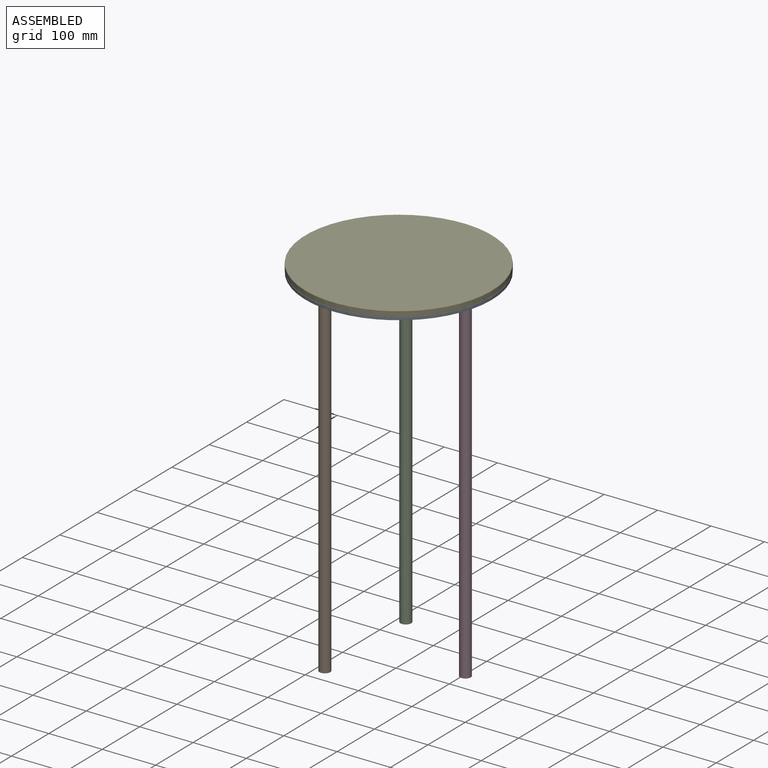
[diagram: assembled view]
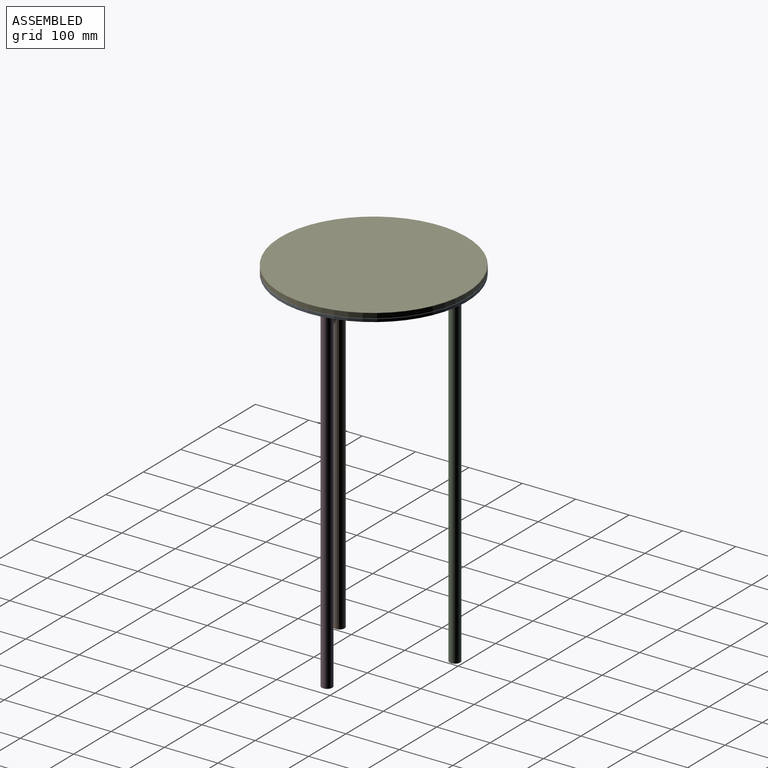
[diagram: assembled view, second angle]
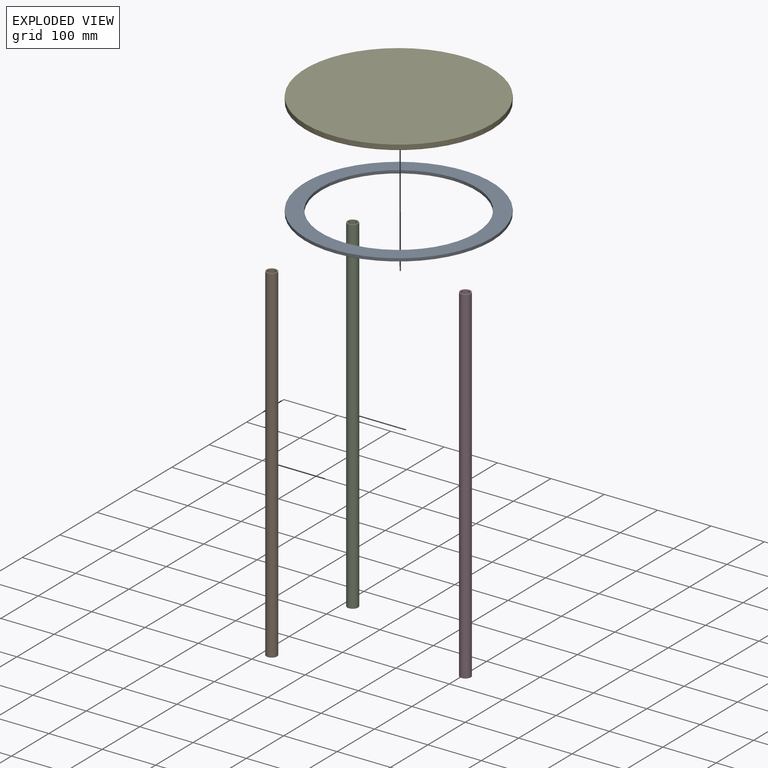
[diagram: exploded view]
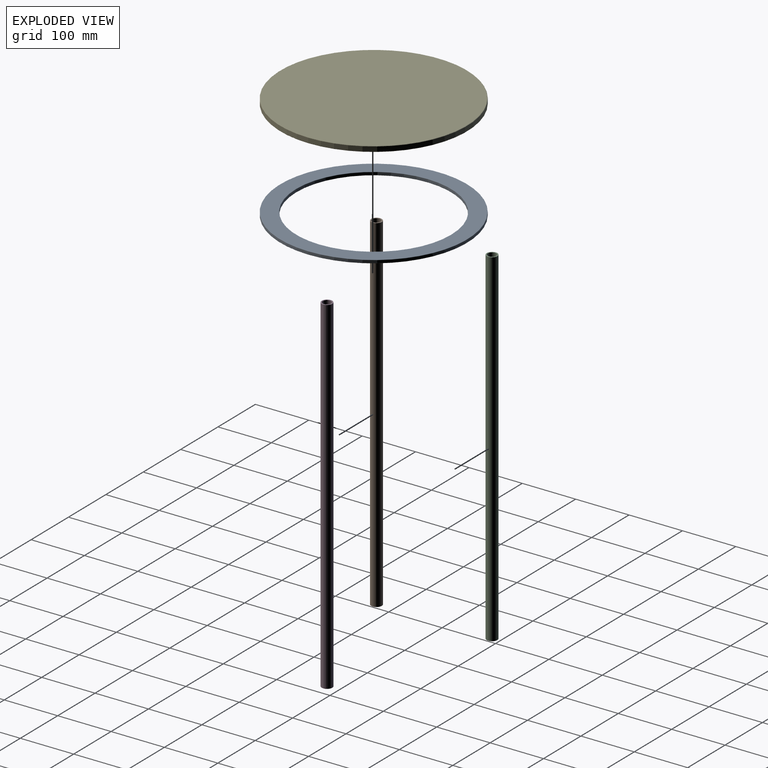
[diagram: exploded view, second angle]
ASSEMBLY  parts=5 mates=2
PART A: 8 faces, bbox 378.8x378.8x6 mm
  f0: cylinder r=145mm len=290mm, axis (0,0,-1), area 4555.3mm2, adj f4,f6
  f1: cylinder r=175mm len=350mm, axis (0,0,-1), area 5497.8mm2, adj f5,f7
  f2: plane 349x349mm, normal (0,0,1), area 29154mm2, adj f6,f7
  f3: plane 349x349mm, normal (0,0,-1), area 29154mm2, adj f4,f5
  f4: torus R=145.5mm, axis (0,0,1), area 716.4mm2, adj f0,f3
  f5: torus R=174.5mm, axis (0,0,1), area 862.7mm2, adj f1,f3
  f6: torus R=145.5mm, axis (0,0,1), area 716.4mm2, adj f0,f2
  f7: torus R=174.5mm, axis (0,0,1), area 862.7mm2, adj f1,f2
PART B: 4 faces, bbox 20x20x650 mm
  f0: cylinder r=8mm len=650mm, axis (0,0,1), area 32672.6mm2, adj f2,f3
  f1: cylinder r=10mm len=650mm, axis (0,0,1), area 40840.7mm2, adj f2,f3
  f2: plane 20x20mm, normal (0,0,-1), area 113.1mm2, adj f0,f1
  f3: plane 20x20mm, normal (0,0,1), area 113.1mm2, adj f0,f1
PART C: same geometry as B
PART D: same geometry as B
PART E: 5 faces, bbox 350x350x10 mm
  f0: cylinder r=175mm len=350mm, axis (0,0,-1), area 9896mm2, adj f3,f4
  f1: plane 349x349mm, normal (0,0,1), area 95662.3mm2, adj f4
  f2: plane 349x349mm, normal (0,0,-1), area 95662.3mm2, adj f3
  f3: cone r=175mm half-angle=45deg, axis (0,0,1), area 776.4mm2, adj f0,f2
  f4: cone r=174.5mm half-angle=45deg, axis (0,0,-1), area 776.4mm2, adj f0,f1
PLACE A rot(axis=(1,0,0),180deg) t=(-155.1,-56.61,60.4)mm
PLACE B rot(axis=(0,0,-1),120deg) t=(-217.6,-164.87,54.4)mm
PLACE C rot(axis=(0,0,1),120deg) t=(-217.6,51.64,54.4)mm
PLACE D t=(-30.1,-56.61,54.4)mm
PLACE E rot(axis=(1,0,0),180deg) t=(-155.1,-56.61,70.4)mm
MATE fastened D.f1 <-> A.f2  axis (0,0,1) through (-30.1,-56.61,54.4)mm
MATE fastened A.f1 <-> E.f0  axis (0,0,1) through (-155.1,-56.61,60.4)mm
